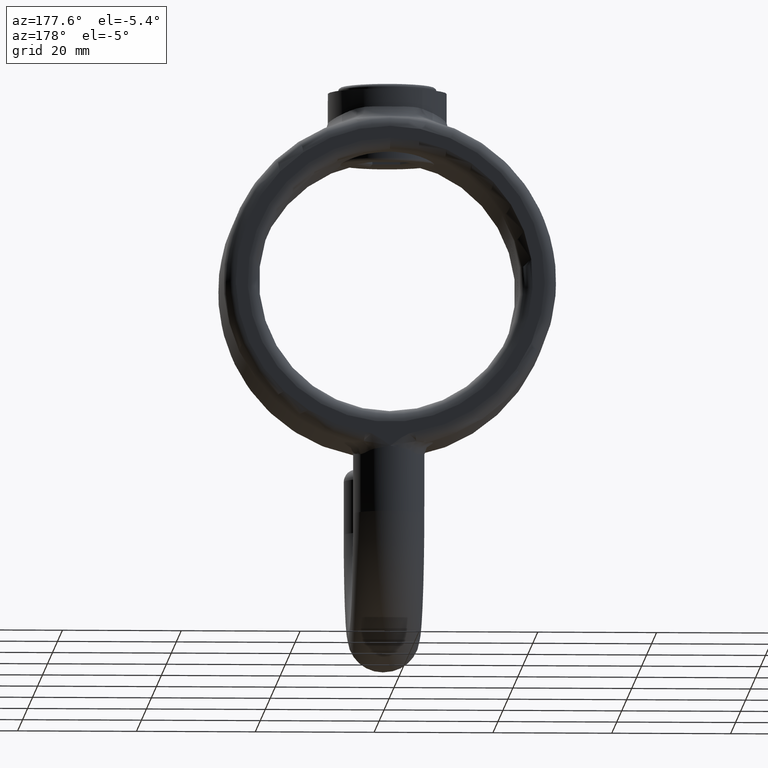
[diagram: clean part render]
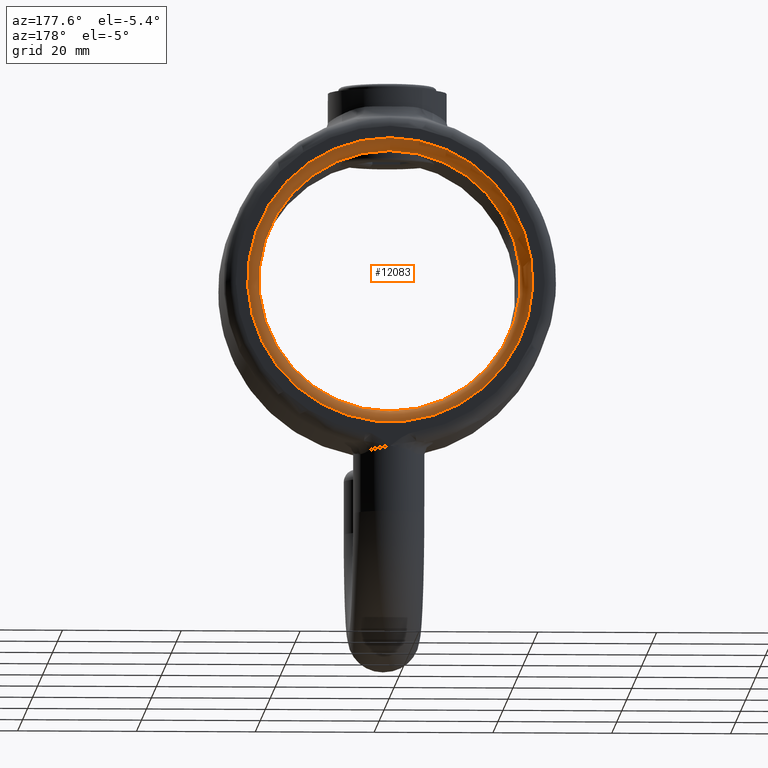
[diagram: same view with one face highlighted and labeled with its STEP entity id]
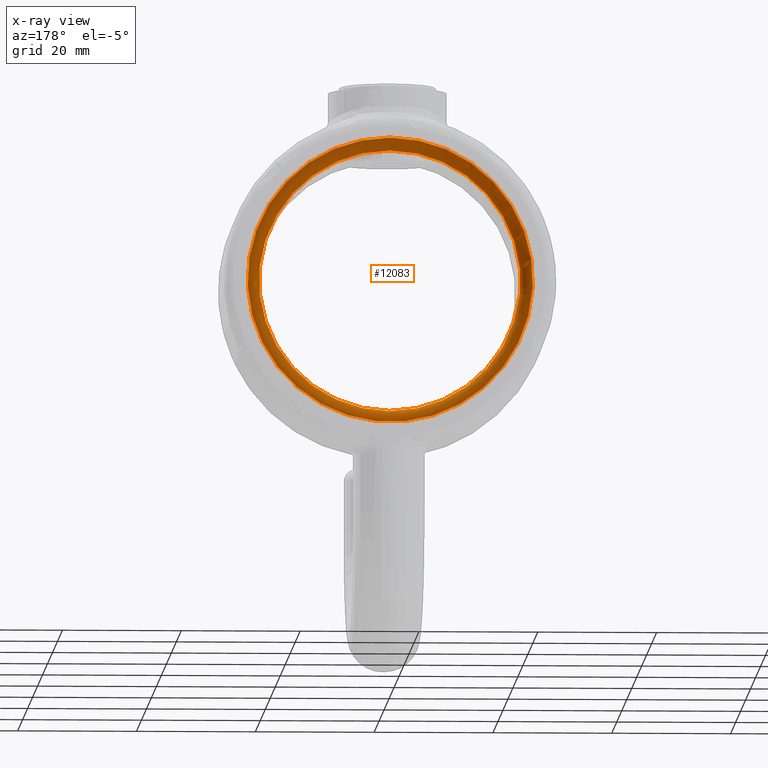
[diagram: x-ray of the same camera — body ghosted, the highlighted face saturated]
A machine part, auxiliary view. The second image highlights one B-rep face of the part: STEP entity #12083.
The next image is the same camera in x-ray: the body ghosted, the highlighted face saturated — about 0% of this face is hidden behind the body in this view.
In plain terms, the highlighted toroidal blend (fillet) surface has major radius 24 mm and minor (blend) radius 2 mm.
Its self-contained STEP definition (entity closure, byte-faithful):
#634 = EDGE_LOOP ( 'NONE', ( #1423 ) ) ;
#1245 = AXIS2_PLACEMENT_3D ( 'NONE', #5602, #12230, #7401 ) ;
#1335 = CIRCLE ( 'NONE', #6229, 22.00000000000000000 ) ;
#1423 = ORIENTED_EDGE ( 'NONE', *, *, #11873, .F. ) ;
#2527 = AXIS2_PLACEMENT_3D ( 'NONE', #3078, #7863, #5947 ) ;
#2629 = ORIENTED_EDGE ( 'NONE', *, *, #7604, .F. ) ;
#3078 = CARTESIAN_POINT ( 'NONE',  ( 0.000000000000000000, 23.00000000000000000, 0.000000000000000000 ) ) ;
#4154 = CIRCLE ( 'NONE', #1245, 24.00000000000000000 ) ;
#5001 = DIRECTION ( 'NONE',  ( 0.000000000000000000, 0.000000000000000000, 1.000000000000000000 ) ) ;
#5602 = CARTESIAN_POINT ( 'NONE',  ( 0.000000000000000000, 25.00000000000000000, 0.000000000000000000 ) ) ;
#5900 = EDGE_LOOP ( 'NONE', ( #2629 ) ) ;
#5923 = CARTESIAN_POINT ( 'NONE',  ( 0.000000000000000000, 23.00000000000000000, 0.000000000000000000 ) ) ;
#5947 = DIRECTION ( 'NONE',  ( 0.000000000000000000, 0.000000000000000000, 1.000000000000000000 ) ) ;
#6229 = AXIS2_PLACEMENT_3D ( 'NONE', #5923, #10706, #5001 ) ;
#6435 = CARTESIAN_POINT ( 'NONE',  ( 0.000000000000000000, 25.00000000000000000, 24.00000000000000000 ) ) ;
#6982 = FACE_OUTER_BOUND ( 'NONE', #634, .T. ) ;
#7112 = VERTEX_POINT ( 'NONE', #6435 ) ;
#7401 = DIRECTION ( 'NONE',  ( 0.000000000000000000, 0.000000000000000000, 1.000000000000000000 ) ) ;
#7405 = VERTEX_POINT ( 'NONE', #8336 ) ;
#7604 = EDGE_CURVE ( 'NONE', #7405, #7405, #1335, .T. ) ;
#7863 = DIRECTION ( 'NONE',  ( 0.000000000000000000, 1.000000000000000000, 0.000000000000000000 ) ) ;
#8336 = CARTESIAN_POINT ( 'NONE',  ( 0.000000000000000000, 23.00000000000000000, 22.00000000000000000 ) ) ;
#10243 = FACE_OUTER_BOUND ( 'NONE', #5900, .T. ) ;
#10706 = DIRECTION ( 'NONE',  ( 0.000000000000000000, 1.000000000000000000, 0.000000000000000000 ) ) ;
#11873 = EDGE_CURVE ( 'NONE', #7112, #7112, #4154, .T. ) ;
#12083 = ADVANCED_FACE ( 'NONE', ( #6982, #10243 ), #12169, .T. ) ;
#12169 = TOROIDAL_SURFACE ( 'NONE', #2527, 24.00000000000000000, 2.000000000000000000 ) ;
#12230 = DIRECTION ( 'NONE',  ( -0.000000000000000000, -1.000000000000000000, -0.000000000000000000 ) ) ;